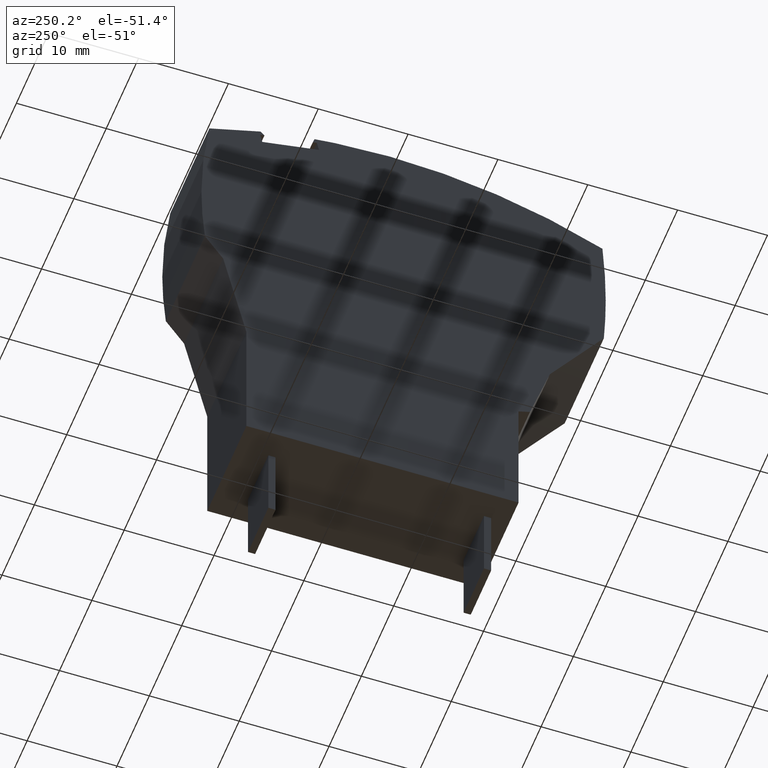
[diagram: clean part render]
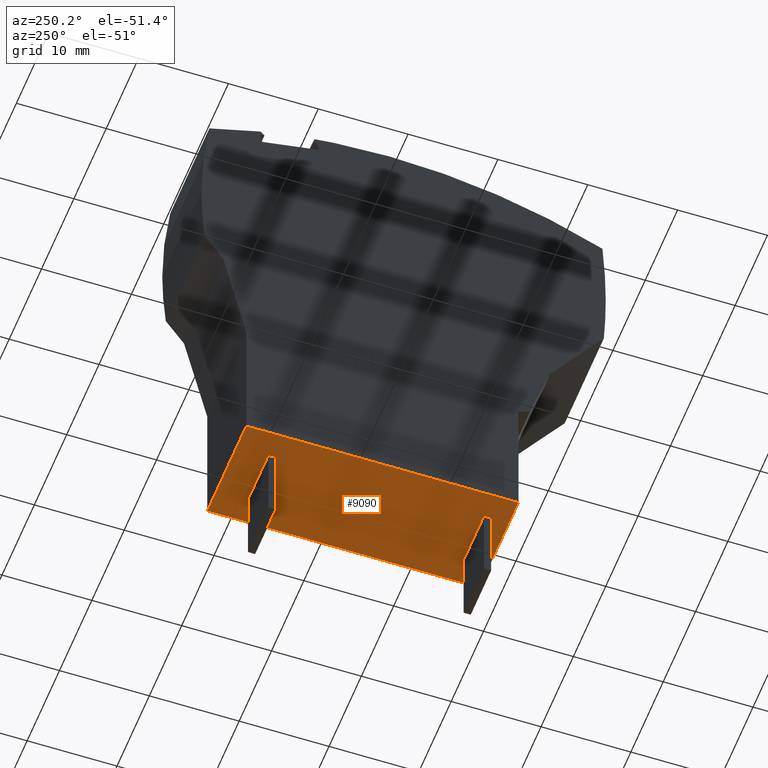
[diagram: same view with one face highlighted and labeled with its STEP entity id]
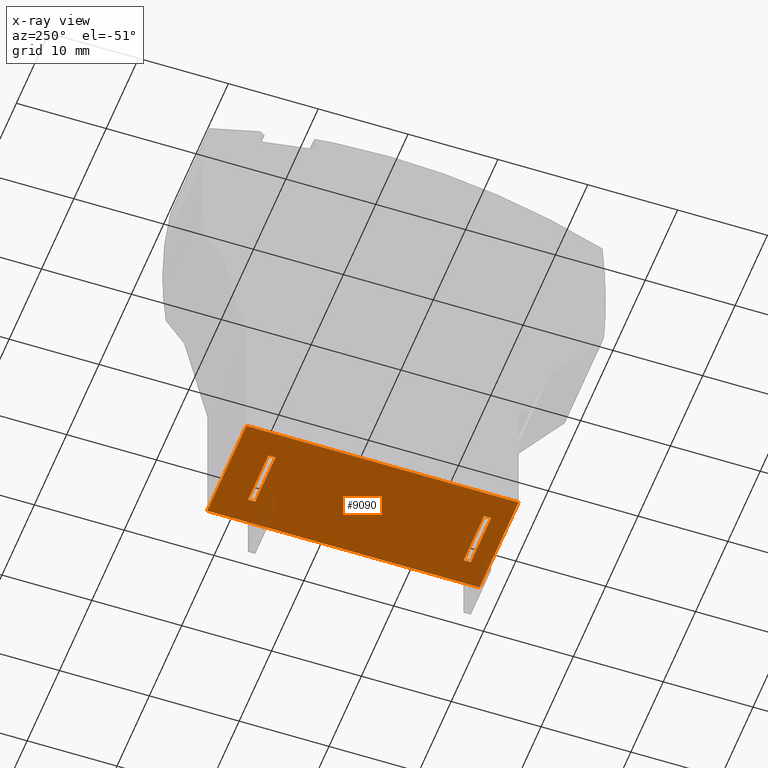
[diagram: x-ray of the same camera — body ghosted, the highlighted face saturated]
A machine part, auxiliary view. The second image highlights one B-rep face of the part: STEP entity #9090.
The next image is the same camera in x-ray: the body ghosted, the highlighted face saturated — about 2% of this face is hidden behind the body in this view.
In plain terms, the highlighted planar face has unit normal (-0, 0, -1).
Its self-contained STEP definition (entity closure, byte-faithful):
#1880=CARTESIAN_POINT('',(14.5821672261189,-10.4000000000194,
53.5700000001206));
#1890=VERTEX_POINT('',#1880);
#1920=CARTESIAN_POINT('',(-5.08695122850913,-10.3999999999975,
53.5700000001206));
#1930=DIRECTION('',(-1.,1.11123366772477E-12,0.));
#1940=VECTOR('',#1930,1.);
#1950=LINE('',#1920,#1940);
#1960=CARTESIAN_POINT('',(-15.7178327738811,-10.3999999999857,
53.5700000001206));
#1970=VERTEX_POINT('',#1960);
#1980=EDGE_CURVE('',#1890,#1970,#1950,.T.);
#3270=CARTESIAN_POINT('',(11.7821672261189,-10.4000000000163,
44.3450000001206));
#3280=VERTEX_POINT('',#3270);
#3450=CARTESIAN_POINT('',(12.5821672261189,-10.4000000000172,
44.3450000001206));
#3460=VERTEX_POINT('',#3450);
#3490=CARTESIAN_POINT('',(0.182167226118875,-10.4000000000034,
44.3450000001206));
#3500=DIRECTION('',(1.,-1.11123366772477E-12,0.));
#3510=VECTOR('',#3500,1.);
#3520=LINE('',#3490,#3510);
#3530=EDGE_CURVE('',#3280,#3460,#3520,.T.);
#4790=CARTESIAN_POINT('',(-15.7178327738811,-10.3999999999857,
41.4450000001206));
#4800=DIRECTION('',(0.,0.,1.));
#4810=VECTOR('',#4800,1.);
#4820=LINE('',#4790,#4810);
#4830=CARTESIAN_POINT('',(-15.7178327738811,-10.3999999999857,
41.4700000001206));
#4840=VERTEX_POINT('',#4830);
#4850=EDGE_CURVE('',#4840,#1970,#4820,.T.);
#5770=CARTESIAN_POINT('',(14.5821672261189,-10.4000000000194,
41.4450000001206));
#5780=DIRECTION('',(0.,0.,1.));
#5790=VECTOR('',#5780,1.);
#5800=LINE('',#5770,#5790);
#5810=CARTESIAN_POINT('',(14.5821672261189,-10.4000000000194,
41.4700000001206));
#5820=VERTEX_POINT('',#5810);
#5830=EDGE_CURVE('',#5820,#1890,#5800,.T.);
#7280=CARTESIAN_POINT('',(12.5821672261189,-10.4000000000172,
50.6450000001206));
#7290=VERTEX_POINT('',#7280);
#7320=CARTESIAN_POINT('',(12.5821672261189,-10.4000000000172,
41.4450000001206));
#7330=DIRECTION('',(0.,0.,1.));
#7340=VECTOR('',#7330,1.);
#7350=LINE('',#7320,#7340);
#7360=EDGE_CURVE('',#3460,#7290,#7350,.T.);
#8410=CARTESIAN_POINT('',(14.5821672261189,-10.4000000000194,
41.4450000001206));
#8420=DIRECTION('',(-1.11123366772477E-12,-1.,0.));
#8430=DIRECTION('',(1.,-1.11123366772477E-12,0.));
#8440=AXIS2_PLACEMENT_3D('',#8410,#8420,#8430);
#8450=PLANE('',#8440);
#8460=CARTESIAN_POINT('',(0.182167226118875,-10.4000000000034,
44.3450000001206));
#8470=DIRECTION('',(1.,-1.11123366772477E-12,0.));
#8480=VECTOR('',#8470,1.);
#8490=LINE('',#8460,#8480);
#8500=CARTESIAN_POINT('',(-12.2178327738811,-10.3999999999896,
44.3450000001206));
#8510=VERTEX_POINT('',#8500);
#8520=CARTESIAN_POINT('',(-11.4178327738811,-10.3999999999905,
44.3450000001206));
#8530=VERTEX_POINT('',#8520);
#8540=EDGE_CURVE('',#8510,#8530,#8490,.T.);
#8550=ORIENTED_EDGE('',*,*,#8540,.F.);
#8560=CARTESIAN_POINT('',(-11.4178327738811,-10.3999999999905,
41.4450000001206));
#8570=DIRECTION('',(0.,0.,1.));
#8580=VECTOR('',#8570,1.);
#8590=LINE('',#8560,#8580);
#8600=CARTESIAN_POINT('',(-11.4178327738811,-10.3999999999905,
50.6450000001206));
#8610=VERTEX_POINT('',#8600);
#8620=EDGE_CURVE('',#8530,#8610,#8590,.T.);
#8630=ORIENTED_EDGE('',*,*,#8620,.F.);
#8640=CARTESIAN_POINT('',(0.182167226118875,-10.4000000000034,
50.6450000001206));
#8650=DIRECTION('',(1.,-1.11123366772477E-12,0.));
#8660=VECTOR('',#8650,1.);
#8670=LINE('',#8640,#8660);
#8680=CARTESIAN_POINT('',(-12.2178327738811,-10.3999999999896,
50.6450000001206));
#8690=VERTEX_POINT('',#8680);
#8700=EDGE_CURVE('',#8690,#8610,#8670,.T.);
#8710=ORIENTED_EDGE('',*,*,#8700,.T.);
#8720=CARTESIAN_POINT('',(-12.2178327738811,-10.3999999999896,
41.4450000001206));
#8730=DIRECTION('',(0.,0.,-1.));
#8740=VECTOR('',#8730,1.);
#8750=LINE('',#8720,#8740);
#8760=EDGE_CURVE('',#8690,#8510,#8750,.T.);
#8770=ORIENTED_EDGE('',*,*,#8760,.F.);
#8780=EDGE_LOOP('',(#8770,#8710,#8630,#8550));
#8790=FACE_BOUND('',#8780,.T.);
#8800=CARTESIAN_POINT('',(11.7821672261189,-10.4000000000163,
41.4450000001206));
#8810=DIRECTION('',(0.,0.,-1.));
#8820=VECTOR('',#8810,1.);
#8830=LINE('',#8800,#8820);
#8840=CARTESIAN_POINT('',(11.7821672261189,-10.4000000000163,
50.6450000001206));
#8850=VERTEX_POINT('',#8840);
#8860=EDGE_CURVE('',#8850,#3280,#8830,.T.);
#8870=ORIENTED_EDGE('',*,*,#8860,.F.);
#8880=ORIENTED_EDGE('',*,*,#3530,.F.);
#8890=ORIENTED_EDGE('',*,*,#7360,.F.);
#8900=CARTESIAN_POINT('',(0.182167226118875,-10.4000000000034,
50.6450000001206));
#8910=DIRECTION('',(1.,-1.11123366772477E-12,0.));
#8920=VECTOR('',#8910,1.);
#8930=LINE('',#8900,#8920);
#8940=EDGE_CURVE('',#8850,#7290,#8930,.T.);
#8950=ORIENTED_EDGE('',*,*,#8940,.T.);
#8960=EDGE_LOOP('',(#8950,#8890,#8880,#8870));
#8970=FACE_BOUND('',#8960,.T.);
#8980=ORIENTED_EDGE('',*,*,#4850,.F.);
#8990=ORIENTED_EDGE('',*,*,#1980,.T.);
#9000=ORIENTED_EDGE('',*,*,#5830,.T.);
#9010=CARTESIAN_POINT('',(-5.08695122850913,-10.3999999999975,
41.4700000001206));
#9020=DIRECTION('',(-1.,1.11123366772477E-12,0.));
#9030=VECTOR('',#9020,1.);
#9040=LINE('',#9010,#9030);
#9050=EDGE_CURVE('',#5820,#4840,#9040,.T.);
#9060=ORIENTED_EDGE('',*,*,#9050,.F.);
#9070=EDGE_LOOP('',(#9060,#9000,#8990,#8980));
#9080=FACE_OUTER_BOUND('',#9070,.T.);
#9090=ADVANCED_FACE('',(#8790,#8970,#9080),#8450,.T.);